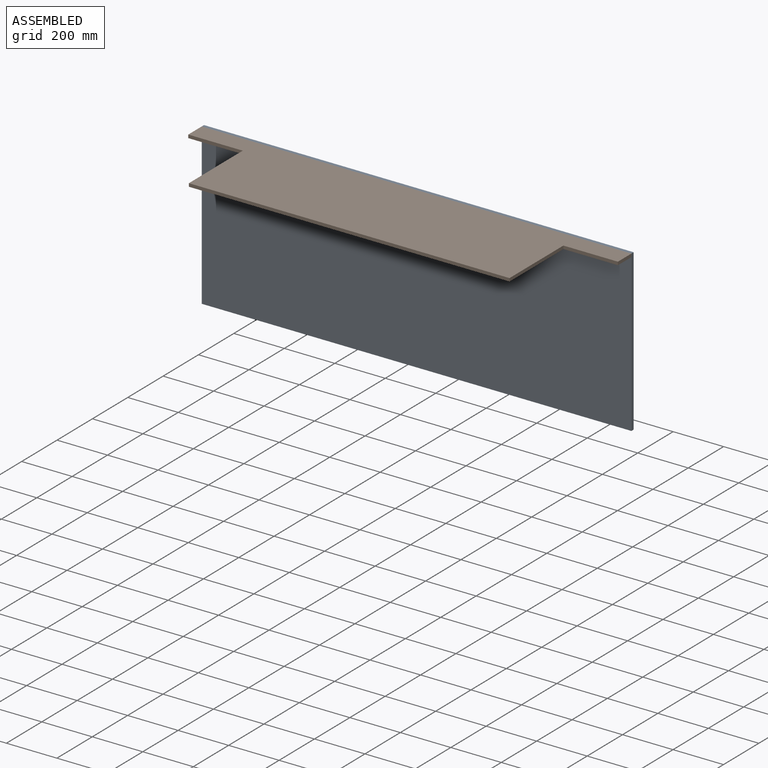
[diagram: assembled view]
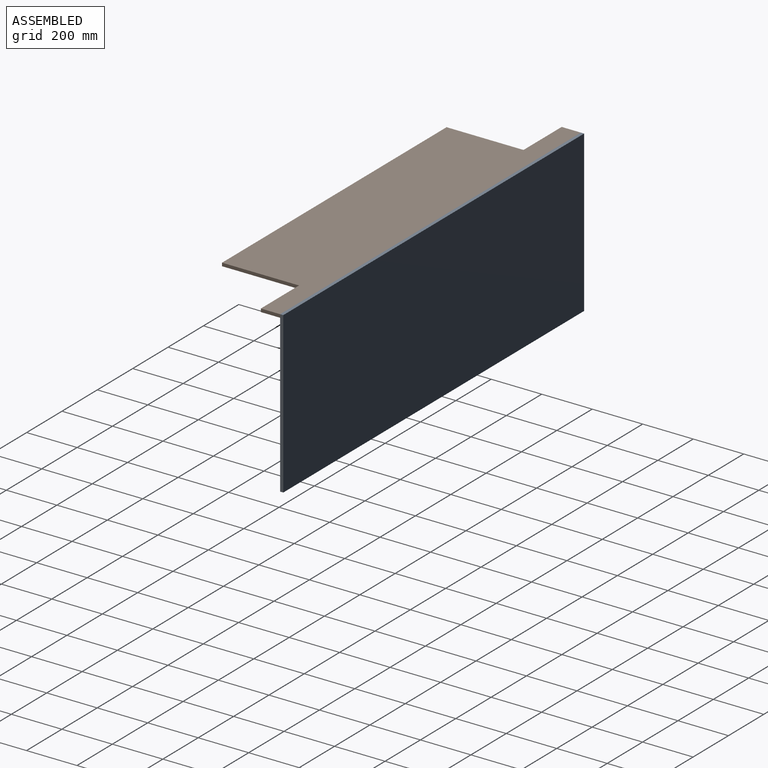
[diagram: assembled view, second angle]
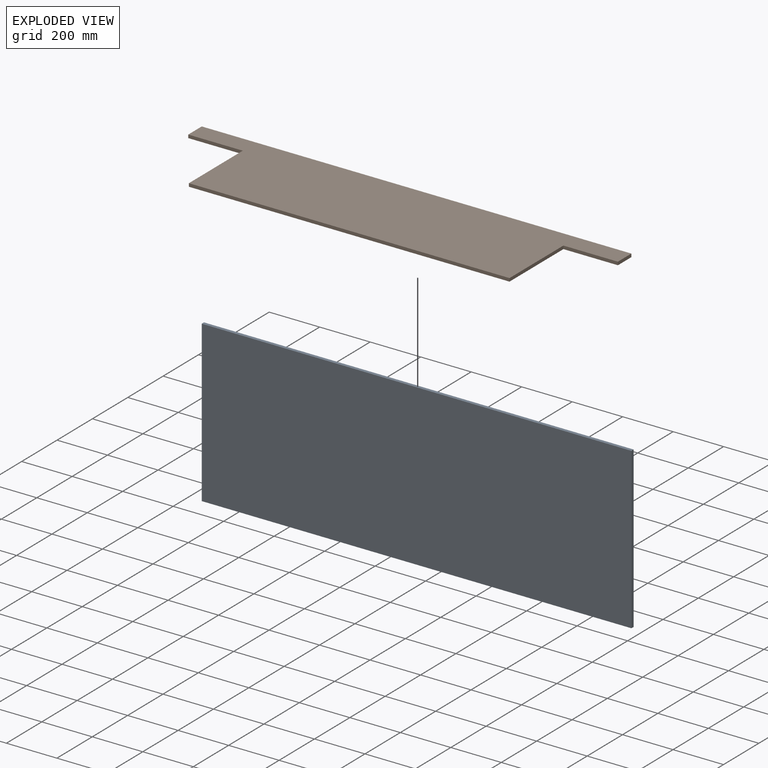
[diagram: exploded view]
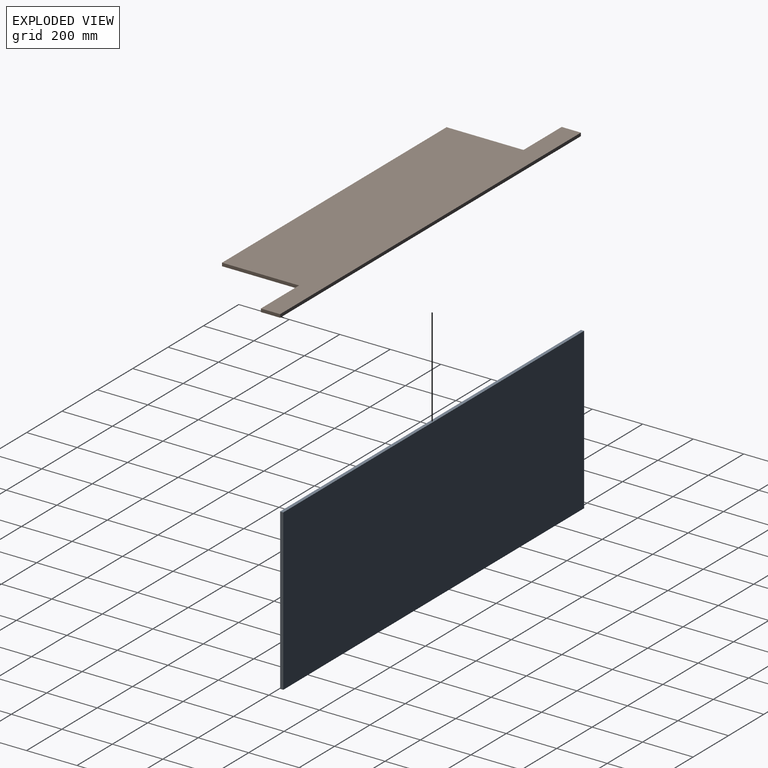
[diagram: exploded view, second angle]
ASSEMBLY  parts=2 mates=3
PART A: 6 faces, bbox 1701.8x12.7x635 mm
  f0: plane 1701.8x12.7mm, normal (0,0,1), area 21612.9mm2, adj f1,f3,f4,f5
  f1: plane 635x12.7mm, normal (-1,0,0), area 8064.5mm2, adj f0,f2,f4,f5
  f2: plane 1701.8x12.7mm, normal (0,0,-1), area 21612.9mm2, adj f1,f3,f4,f5
  f3: plane 635x12.7mm, normal (1,0,0), area 8064.5mm2, adj f0,f2,f4,f5
  f4: plane 1701.8x635mm, normal (0,-1,0), area 1080643mm2, adj f0,f1,f2,f3
  f5: plane 1701.8x635mm, normal (0,1,0), area 1080643mm2, adj f0,f1,f2,f3
PART B: 10 faces, bbox 381x12.7x1701.8 mm
  f0: plane 1270x12.7mm, normal (-1,0,0), area 16129mm2, adj f1,f2,f6,f8
  f1: plane 1701.8x381mm, normal (0,-1,0), area 516773.2mm2, adj f0,f3,f4,f5,f6,f7,f8,f9
  f2: plane 1701.8x381mm, normal (0,1,0), area 516773.2mm2, adj f0,f3,f4,f5,f6,f7,f8,f9
  f3: plane 76.2x12.7mm, normal (0,0,-1), area 967.7mm2, adj f1,f2,f4,f7
  f4: plane 1701.8x12.7mm, normal (1,0,0), area 21612.9mm2, adj f1,f2,f3,f5
  f5: plane 76.2x12.7mm, normal (0,0,1), area 967.7mm2, adj f1,f2,f4,f9
  f6: plane 304.8x12.7mm, normal (0,0,-1), area 3871mm2, adj f0,f1,f2,f7
  f7: plane 215.9x12.7mm, normal (-1,0,0), area 2741.9mm2, adj f1,f2,f3,f6
  f8: plane 304.8x12.7mm, normal (0,0,1), area 3871mm2, adj f0,f1,f2,f9
  f9: plane 215.9x12.7mm, normal (-1,0,0), area 2741.9mm2, adj f1,f2,f5,f8
PLACE A t=(-629.75,-350.44,-1099.39)mm
PLACE B rot(axis=(-0.58,-0.58,0.58),120deg) t=(283.02,-744.14,-770.14)mm
MATE planar B.f1 <-> A.f0  axis (0,0,1) through (-661.59,-543.94,-757.44)mm
MATE planar B.f4 <-> A.f4  axis (0,1,0) through (-661.59,-363.14,-763.79)mm
MATE planar B.f3 <-> A.f3  axis (1,0,0) through (189.31,-401.24,-763.79)mm
